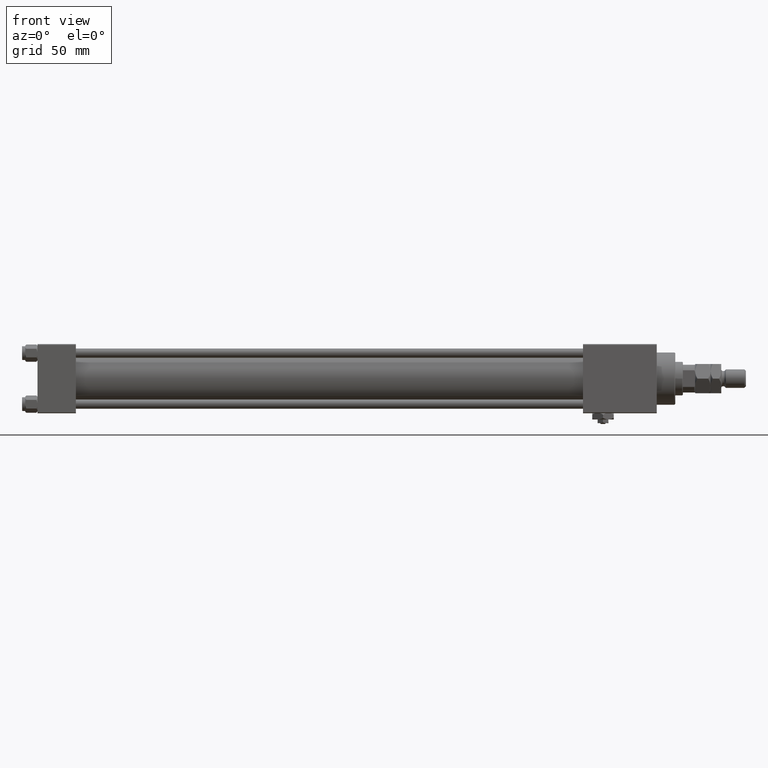
[diagram: clean part render]
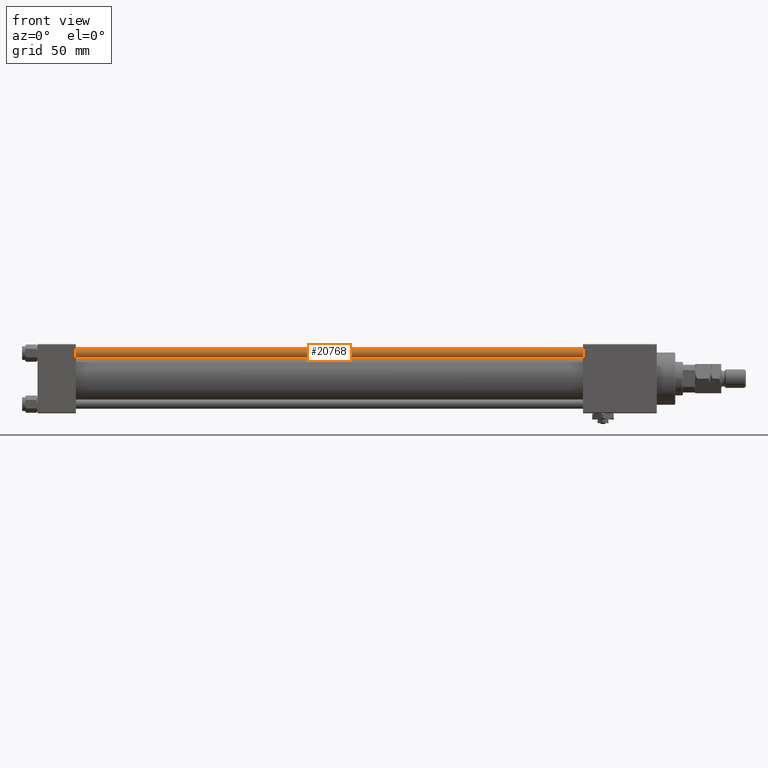
[diagram: same view with one face highlighted and labeled with its STEP entity id]
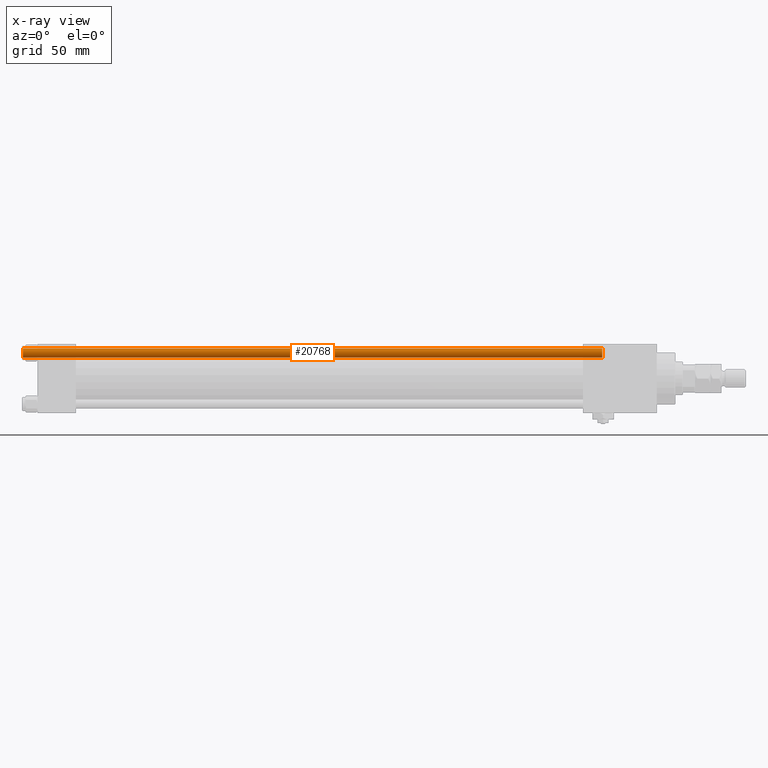
[diagram: x-ray of the same camera — body ghosted, the highlighted face saturated]
A machine part, front view. The second image highlights one B-rep face of the part: STEP entity #20768.
The next image is the same camera in x-ray: the body ghosted, the highlighted face saturated — about 0% of this face is hidden behind the body in this view.
In plain terms, the highlighted cylindrical surface (edge-blend (fillet) strip) has radius 3 mm, axis along (1, 0, -0).
Its self-contained STEP definition (entity closure, byte-faithful):
#687 = ORIENTED_EDGE ( 'NONE', *, *, #37951, .T. ) ;
#2184 = DIRECTION ( 'NONE',  ( 1.000000000000000000, 0.000000000000000000, 0.000000000000000000 ) ) ;
#3158 = DIRECTION ( 'NONE',  ( -0.000000000000000000, -0.000000000000000000, -1.000000000000000000 ) ) ;
#3514 = CARTESIAN_POINT ( 'NONE',  ( 3.000000000000000444, 3.673940397442060361E-16, 377.5000000000000000 ) ) ;
#5003 = CARTESIAN_POINT ( 'NONE',  ( -3.000000000000000444, 0.000000000000000000, 0.5000000000000004441 ) ) ;
#7192 = ORIENTED_EDGE ( 'NONE', *, *, #19119, .T. ) ;
#7723 = CIRCLE ( 'NONE', #37925, 3.000000000000000444 ) ;
#10587 = CIRCLE ( 'NONE', #40780, 3.000000000000000444 ) ;
#12404 = EDGE_CURVE ( 'NONE', #41348, #30667, #7723, .T. ) ;
#12696 = ORIENTED_EDGE ( 'NONE', *, *, #26302, .F. ) ;
#13289 = ORIENTED_EDGE ( 'NONE', *, *, #12404, .T. ) ;
#14882 = CARTESIAN_POINT ( 'NONE',  ( -3.000000000000000444, 0.000000000000000000, 378.0000000000000000 ) ) ;
#15305 = VERTEX_POINT ( 'NONE', #5003 ) ;
#19119 = EDGE_CURVE ( 'NONE', #34425, #15305, #10587, .T. ) ;
#20768 = ADVANCED_FACE ( 'NONE', ( #23169 ), #35859, .T. ) ;
#22755 = CARTESIAN_POINT ( 'NONE',  ( 0.000000000000000000, 0.000000000000000000, 0.5000000000000004441 ) ) ;
#23169 = FACE_OUTER_BOUND ( 'NONE', #48067, .T. ) ;
#26302 = EDGE_CURVE ( 'NONE', #41348, #15305, #27286, .T. ) ;
#27286 = LINE ( 'NONE', #14882, #47835 ) ;
#27789 = CARTESIAN_POINT ( 'NONE',  ( -3.000000000000000444, 0.000000000000000000, 377.5000000000000000 ) ) ;
#28061 = LINE ( 'NONE', #28595, #28173 ) ;
#28173 = VECTOR ( 'NONE', #44559, 1000.000000000000000 ) ;
#28595 = CARTESIAN_POINT ( 'NONE',  ( 3.000000000000000444, 3.673940397442060361E-16, 378.0000000000000000 ) ) ;
#28770 = AXIS2_PLACEMENT_3D ( 'NONE', #31790, #3158, #52340 ) ;
#30667 = VERTEX_POINT ( 'NONE', #3514 ) ;
#31790 = CARTESIAN_POINT ( 'NONE',  ( 0.000000000000000000, 0.000000000000000000, 378.0000000000000000 ) ) ;
#34425 = VERTEX_POINT ( 'NONE', #39426 ) ;
#34650 = DIRECTION ( 'NONE',  ( 1.000000000000000000, 0.000000000000000000, 0.000000000000000000 ) ) ;
#35859 = CYLINDRICAL_SURFACE ( 'NONE', #28770, 3.000000000000000444 ) ;
#37925 = AXIS2_PLACEMENT_3D ( 'NONE', #39202, #47040, #2184 ) ;
#37951 = EDGE_CURVE ( 'NONE', #30667, #34425, #28061, .T. ) ;
#39202 = CARTESIAN_POINT ( 'NONE',  ( 0.000000000000000000, 0.000000000000000000, 377.5000000000000000 ) ) ;
#39232 = DIRECTION ( 'NONE',  ( -0.000000000000000000, -0.000000000000000000, 1.000000000000000000 ) ) ;
#39426 = CARTESIAN_POINT ( 'NONE',  ( 3.000000000000000444, 3.673940397442060361E-16, 0.5000000000000004441 ) ) ;
#40780 = AXIS2_PLACEMENT_3D ( 'NONE', #22755, #39232, #34650 ) ;
#41348 = VERTEX_POINT ( 'NONE', #27789 ) ;
#44559 = DIRECTION ( 'NONE',  ( -0.000000000000000000, -0.000000000000000000, -1.000000000000000000 ) ) ;
#44586 = DIRECTION ( 'NONE',  ( -0.000000000000000000, -0.000000000000000000, -1.000000000000000000 ) ) ;
#47040 = DIRECTION ( 'NONE',  ( 0.000000000000000000, 0.000000000000000000, -1.000000000000000000 ) ) ;
#47835 = VECTOR ( 'NONE', #44586, 1000.000000000000000 ) ;
#48067 = EDGE_LOOP ( 'NONE', ( #13289, #687, #7192, #12696 ) ) ;
#52340 = DIRECTION ( 'NONE',  ( -1.000000000000000000, 0.000000000000000000, 0.000000000000000000 ) ) ;